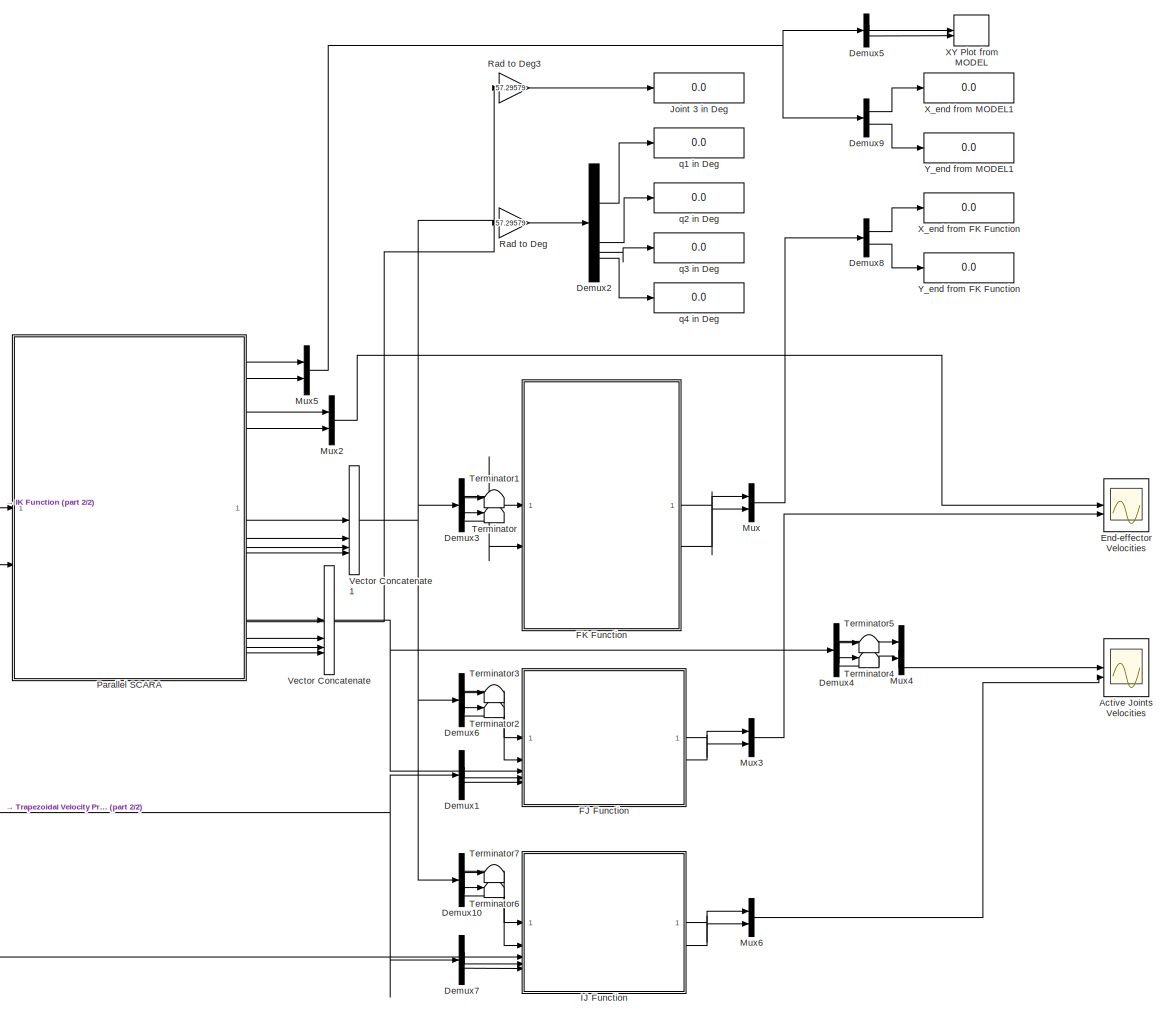
[diagram: root canvas - part 1/2, right side, full height]
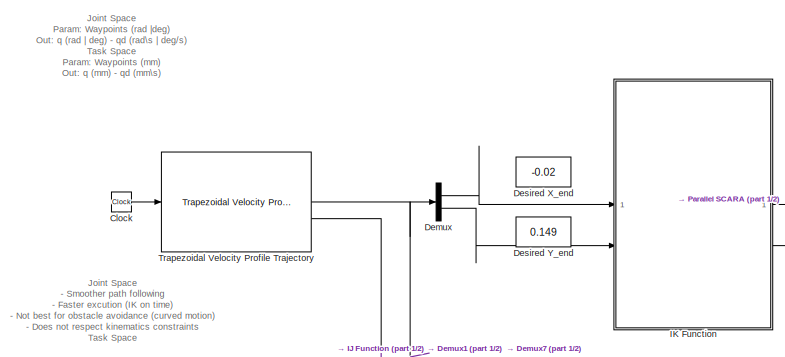
[diagram: root canvas - part 2/2, middle left region]
MODEL slx_7d4622755899
KIND model
CONFIG AbsTol = auto
CONFIG EnableMultiTasking = off
CONFIG FixedStep = auto
CONFIG MaxStep = auto
CONFIG MinStep = auto
CONFIG RelTol = 1e-3
CONFIG SampleTimeConstraint = Unconstrained
CONFIG SolverName = VariableStepAuto
CONFIG StartTime = 0.0
CONFIG StopTime = 10.0
BLOCK [Scope] Active Joints Velocities
  Floating = off
  NumInputPorts = 2
  ScopeSpecificationString = Simulink.scopes.TimeScopeBlockCfg('CurrentConfiguration', extmgr.ConfigurationSet(extmgr.Configuration('Core','General UI',true),extmgr.Configuration('Core','Source UI',true),extmgr.Configuration('Sources','WiredSimulink',true,'DataLoggingVariableName','ScopeData1'),extmgr.Configuration('Visuals','Time Domain',true,'SerializedDisplays',{struct('MinYLimReal','-0.96266','MaxYLimReal','0.37166','YLab...<+1627ch>
BLOCK [Clock] Clock
BLOCK [Demux] Demux
  Outputs = 2
BLOCK [Demux] Demux1
  Outputs = 2
BLOCK [Demux] Demux10
BLOCK [Demux] Demux2
BLOCK [Demux] Demux3
BLOCK [Demux] Demux4
BLOCK [Demux] Demux5
  Outputs = 2
BLOCK [Demux] Demux6
BLOCK [Demux] Demux7
  Outputs = 2
BLOCK [Demux] Demux8
  Outputs = 2
BLOCK [Demux] Demux9
  Outputs = 2
BLOCK [Constant] Desired X_end
  Value = -0.02
BLOCK [Constant] Desired Y_end
  Value = 0.149
BLOCK [Scope] End-effector Velocities
  Floating = off
  NumInputPorts = 2
  ScopeSpecificationString = Simulink.scopes.TimeScopeBlockCfg('CurrentConfiguration', extmgr.ConfigurationSet(extmgr.Configuration('Core','General UI',true),extmgr.Configuration('Core','Source UI',true),extmgr.Configuration('Sources','WiredSimulink',true),extmgr.Configuration('Visuals','Time Domain',true,'SerializedDisplays',{struct('MinYLimReal','-0.00967','MaxYLimReal','0.08445','YLabelReal','','MinYLimMag','0.00000','MaxY...<+1602ch>
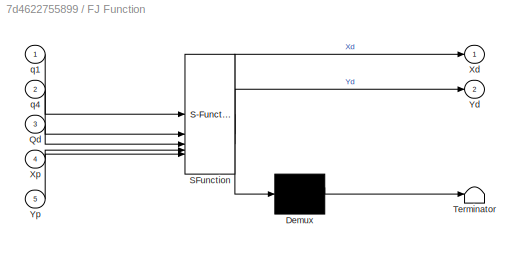
BLOCK [SubSystem] FJ Function
  ErrorFcn = Stateflow.Translate.translate
  LibrarySourceBlock = simulink/User-Defined\nFunctions/MATLAB Function
  PermitHierarchicalResolution = ExplicitOnly
  SFBlockType = MATLAB Function
  TreatAsAtomicUnit = on
BLOCK [Demux] FJ Function/ Demux 
  Outputs = 1
BLOCK [S-Function] FJ Function/ SFunction 
  EnableBusSupport = on
  FunctionName = sf_sfun
  PortCounts = [5 3]
  SFcnIsStateOwnerBlock = off
  SFunctionDeploymentMode = off
  Tag = Stateflow S-Function 3
BLOCK [Terminator] FJ Function/ Terminator 
BLOCK [Inport] FJ Function/Qd
  Port = 3
BLOCK [Outport] FJ Function/Xd
BLOCK [Inport] FJ Function/Xp
  Port = 4
BLOCK [Outport] FJ Function/Yd
  Port = 2
BLOCK [Inport] FJ Function/Yp
  Port = 5
BLOCK [Inport] FJ Function/q1
BLOCK [Inport] FJ Function/q4
  Port = 2
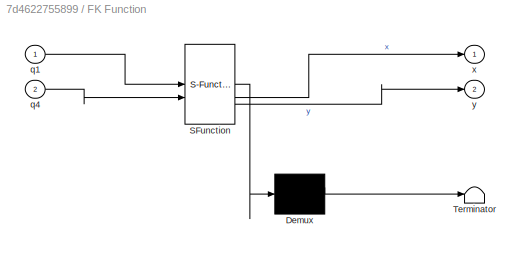
BLOCK [SubSystem] FK Function
  ErrorFcn = Stateflow.Translate.translate
  LibrarySourceBlock = simulink/User-Defined\nFunctions/MATLAB Function
  PermitHierarchicalResolution = ExplicitOnly
  SFBlockType = MATLAB Function
  TreatAsAtomicUnit = on
BLOCK [Demux] FK Function/ Demux 
  Outputs = 1
BLOCK [S-Function] FK Function/ SFunction 
  EnableBusSupport = on
  FunctionName = sf_sfun
  PortCounts = [2 3]
  SFcnIsStateOwnerBlock = off
  SFunctionDeploymentMode = off
  Tag = Stateflow S-Function 1
BLOCK [Terminator] FK Function/ Terminator 
BLOCK [Inport] FK Function/q1
BLOCK [Inport] FK Function/q4
  Port = 2
BLOCK [Outport] FK Function/x
BLOCK [Outport] FK Function/y
  Port = 2
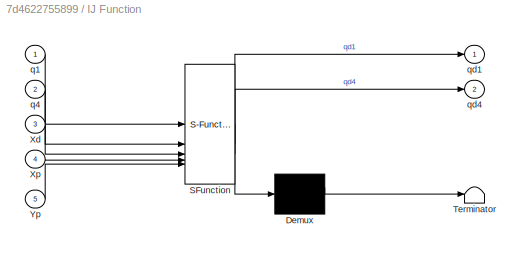
BLOCK [SubSystem] IJ Function
  ErrorFcn = Stateflow.Translate.translate
  LibrarySourceBlock = simulink/User-Defined\nFunctions/MATLAB Function
  PermitHierarchicalResolution = ExplicitOnly
  SFBlockType = MATLAB Function
  TreatAsAtomicUnit = on
BLOCK [Demux] IJ Function/ Demux 
  Outputs = 1
BLOCK [S-Function] IJ Function/ SFunction 
  EnableBusSupport = on
  FunctionName = sf_sfun
  PortCounts = [5 3]
  SFcnIsStateOwnerBlock = off
  SFunctionDeploymentMode = off
  Tag = Stateflow S-Function 4
BLOCK [Terminator] IJ Function/ Terminator 
BLOCK [Inport] IJ Function/Xd
  Port = 3
BLOCK [Inport] IJ Function/Xp
  Port = 4
BLOCK [Inport] IJ Function/Yp
  Port = 5
BLOCK [Inport] IJ Function/q1
BLOCK [Inport] IJ Function/q4
  Port = 2
BLOCK [Outport] IJ Function/qd1
BLOCK [Outport] IJ Function/qd4
  Port = 2
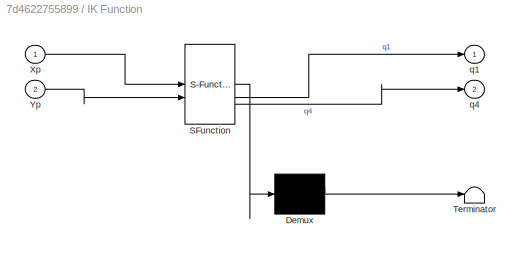
BLOCK [SubSystem] IK Function
  ErrorFcn = Stateflow.Translate.translate
  LibrarySourceBlock = simulink/User-Defined\nFunctions/MATLAB Function
  PermitHierarchicalResolution = ExplicitOnly
  SFBlockType = MATLAB Function
  TreatAsAtomicUnit = on
BLOCK [Demux] IK Function/ Demux 
  Outputs = 1
BLOCK [S-Function] IK Function/ SFunction 
  EnableBusSupport = on
  FunctionName = sf_sfun
  PortCounts = [2 3]
  SFcnIsStateOwnerBlock = off
  SFunctionDeploymentMode = off
  Tag = Stateflow S-Function 2
BLOCK [Terminator] IK Function/ Terminator 
BLOCK [Inport] IK Function/Xp
BLOCK [Inport] IK Function/Yp
  Port = 2
BLOCK [Outport] IK Function/q1
BLOCK [Outport] IK Function/q4
  Port = 2
BLOCK [Display] Joint 3 in Deg
  Decimation = 1
BLOCK [Mux] Mux
  DisplayOption = bar
  Inputs = 2
BLOCK [Mux] Mux2
  DisplayOption = bar
  Inputs = 2
BLOCK [Mux] Mux3
  DisplayOption = bar
  Inputs = 2
BLOCK [Mux] Mux4
  DisplayOption = bar
  Inputs = 2
BLOCK [Mux] Mux5
  DisplayOption = bar
  Inputs = 2
BLOCK [Mux] Mux6
  DisplayOption = bar
  Inputs = 2
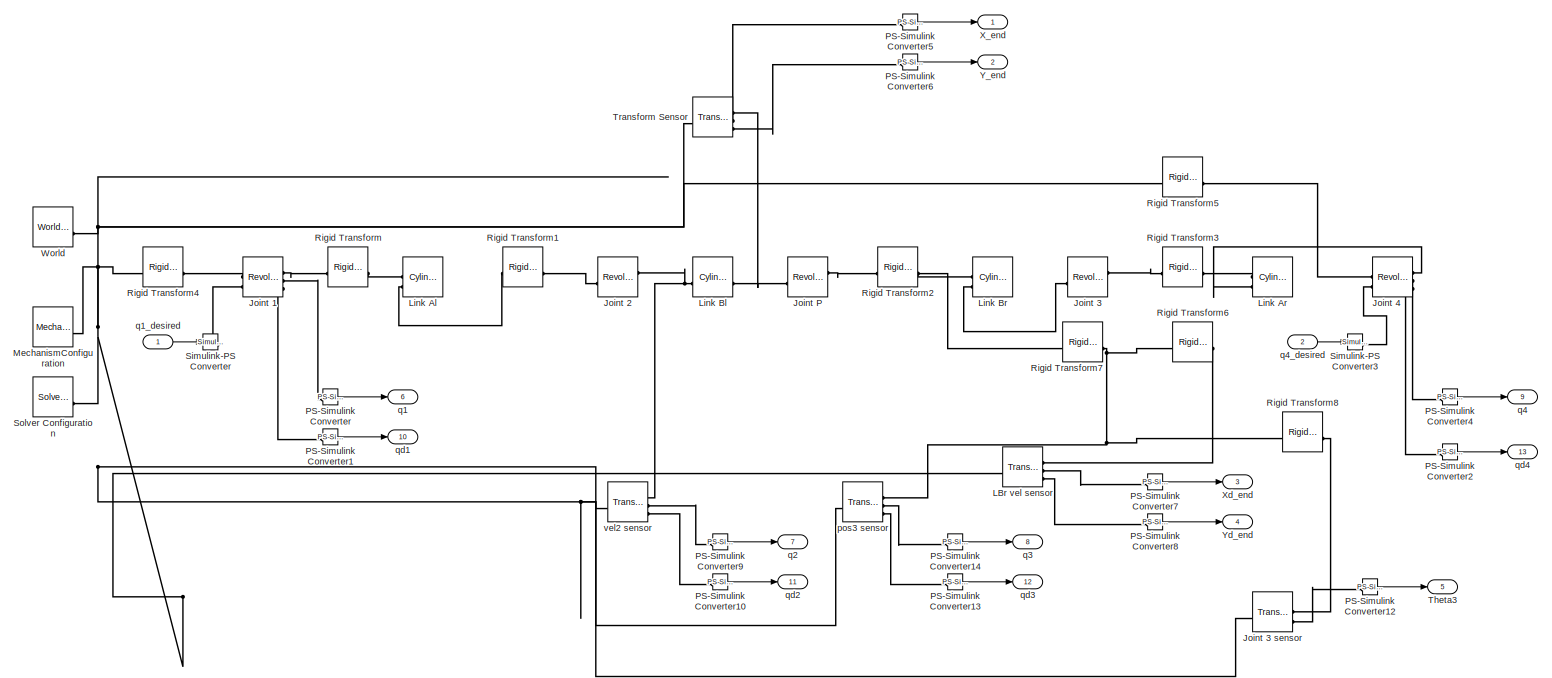
[diagram: Parallel SCARA - part 1/1, most of the canvas]
BLOCK [SubSystem] Parallel SCARA
BLOCK [Reference] Parallel SCARA/Joint 1  REF=sm_lib/Joints/Revolute Joint
  SourceBlock = sm_lib/Joints/Revolute Joint
  SourceType = Revolute Joint
BLOCK [Reference] Parallel SCARA/Joint 2  REF=sm_lib/Joints/Revolute Joint
  SourceBlock = sm_lib/Joints/Revolute Joint
  SourceType = Revolute Joint
BLOCK [Reference] Parallel SCARA/Joint 3  REF=sm_lib/Joints/Revolute Joint
  SourceBlock = sm_lib/Joints/Revolute Joint
  SourceType = Revolute Joint
BLOCK [Reference] Parallel SCARA/Joint 3 sensor   REF=sm_lib/Frames and
Transforms/Transform
Sensor
  SourceBlock = sm_lib/Frames and\nTransforms/Transform\nSensor
  SourceType = Transform\nSensor
BLOCK [Reference] Parallel SCARA/Joint 4  REF=sm_lib/Joints/Revolute Joint
  SourceBlock = sm_lib/Joints/Revolute Joint
  SourceType = Revolute Joint
BLOCK [Reference] Parallel SCARA/Joint P  REF=sm_lib/Joints/Revolute Joint
  SourceBlock = sm_lib/Joints/Revolute Joint
  SourceType = Revolute Joint
BLOCK [Reference] Parallel SCARA/LBr vel sensor  REF=sm_lib/Frames and
Transforms/Transform
Sensor
  SourceBlock = sm_lib/Frames and\nTransforms/Transform\nSensor
  SourceType = Transform\nSensor
BLOCK [Reference] Parallel SCARA/Link Al  REF=sm_lib/Body Elements/Cylindrical Solid
  SourceBlock = sm_lib/Body Elements/Cylindrical Solid
  SourceType = Cylindrical Solid
BLOCK [Reference] Parallel SCARA/Link Ar  REF=sm_lib/Body Elements/Cylindrical Solid
  SourceBlock = sm_lib/Body Elements/Cylindrical Solid
  SourceType = Cylindrical Solid
BLOCK [Reference] Parallel SCARA/Link Bl  REF=sm_lib/Body Elements/Cylindrical Solid
  SourceBlock = sm_lib/Body Elements/Cylindrical Solid
  SourceType = Cylindrical Solid
BLOCK [Reference] Parallel SCARA/Link Br  REF=sm_lib/Body Elements/Cylindrical Solid
  SourceBlock = sm_lib/Body Elements/Cylindrical Solid
  SourceType = Cylindrical Solid
BLOCK [Reference] Parallel SCARA/MechanismConfiguration  REF=sm_lib/Utilities/Mechanism
Configuration
  SourceBlock = sm_lib/Utilities/Mechanism\nConfiguration
  SourceType = Mechanism\nConfiguration
BLOCK [Reference] Parallel SCARA/PS-Simulink Converter  REF=nesl_utility/PS-Simulink
Converter
  SourceBlock = nesl_utility/PS-Simulink\nConverter
  SourceType = PS-Simulink\nConverter
BLOCK [Reference] Parallel SCARA/PS-Simulink Converter1  REF=nesl_utility/PS-Simulink
Converter
  SourceBlock = nesl_utility/PS-Simulink\nConverter
  SourceType = PS-Simulink\nConverter
BLOCK [Reference] Parallel SCARA/PS-Simulink Converter10  REF=nesl_utility/PS-Simulink
Converter
  SourceBlock = nesl_utility/PS-Simulink\nConverter
  SourceType = PS-Simulink\nConverter
BLOCK [Reference] Parallel SCARA/PS-Simulink Converter12  REF=nesl_utility/PS-Simulink
Converter
  SourceBlock = nesl_utility/PS-Simulink\nConverter
  SourceType = PS-Simulink\nConverter
BLOCK [Reference] Parallel SCARA/PS-Simulink Converter13  REF=nesl_utility/PS-Simulink
Converter
  SourceBlock = nesl_utility/PS-Simulink\nConverter
  SourceType = PS-Simulink\nConverter
BLOCK [Reference] Parallel SCARA/PS-Simulink Converter14  REF=nesl_utility/PS-Simulink
Converter
  SourceBlock = nesl_utility/PS-Simulink\nConverter
  SourceType = PS-Simulink\nConverter
BLOCK [Reference] Parallel SCARA/PS-Simulink Converter2  REF=nesl_utility/PS-Simulink
Converter
  SourceBlock = nesl_utility/PS-Simulink\nConverter
  SourceType = PS-Simulink\nConverter
BLOCK [Reference] Parallel SCARA/PS-Simulink Converter4  REF=nesl_utility/PS-Simulink
Converter
  SourceBlock = nesl_utility/PS-Simulink\nConverter
  SourceType = PS-Simulink\nConverter
BLOCK [Reference] Parallel SCARA/PS-Simulink Converter5  REF=nesl_utility/PS-Simulink
Converter
  SourceBlock = nesl_utility/PS-Simulink\nConverter
  SourceType = PS-Simulink\nConverter
BLOCK [Reference] Parallel SCARA/PS-Simulink Converter6  REF=nesl_utility/PS-Simulink
Converter
  SourceBlock = nesl_utility/PS-Simulink\nConverter
  SourceType = PS-Simulink\nConverter
BLOCK [Reference] Parallel SCARA/PS-Simulink Converter7  REF=nesl_utility/PS-Simulink
Converter
  SourceBlock = nesl_utility/PS-Simulink\nConverter
  SourceType = PS-Simulink\nConverter
BLOCK [Reference] Parallel SCARA/PS-Simulink Converter8  REF=nesl_utility/PS-Simulink
Converter
  SourceBlock = nesl_utility/PS-Simulink\nConverter
  SourceType = PS-Simulink\nConverter
BLOCK [Reference] Parallel SCARA/PS-Simulink Converter9  REF=nesl_utility/PS-Simulink
Converter
  SourceBlock = nesl_utility/PS-Simulink\nConverter
  SourceType = PS-Simulink\nConverter
BLOCK [Reference] Parallel SCARA/Rigid Transform  REF=sm_lib/Frames and
Transforms/Rigid
Transform
  SourceBlock = sm_lib/Frames and\nTransforms/Rigid\nTransform
  SourceType = Rigid\nTransform
BLOCK [Reference] Parallel SCARA/Rigid Transform1  REF=sm_lib/Frames and
Transforms/Rigid
Transform
  SourceBlock = sm_lib/Frames and\nTransforms/Rigid\nTransform
  SourceType = Rigid\nTransform
BLOCK [Reference] Parallel SCARA/Rigid Transform2  REF=sm_lib/Frames and
Transforms/Rigid
Transform
  SourceBlock = sm_lib/Frames and\nTransforms/Rigid\nTransform
  SourceType = Rigid\nTransform
BLOCK [Reference] Parallel SCARA/Rigid Transform3  REF=sm_lib/Frames and
Transforms/Rigid
Transform
  SourceBlock = sm_lib/Frames and\nTransforms/Rigid\nTransform
  SourceType = Rigid\nTransform
BLOCK [Reference] Parallel SCARA/Rigid Transform4  REF=sm_lib/Frames and
Transforms/Rigid
Transform
  SourceBlock = sm_lib/Frames and\nTransforms/Rigid\nTransform
  SourceType = Rigid\nTransform
BLOCK [Reference] Parallel SCARA/Rigid Transform5  REF=sm_lib/Frames and
Transforms/Rigid
Transform
  SourceBlock = sm_lib/Frames and\nTransforms/Rigid\nTransform
  SourceType = Rigid\nTransform
BLOCK [Reference] Parallel SCARA/Rigid Transform6  REF=sm_lib/Frames and
Transforms/Rigid
Transform
  SourceBlock = sm_lib/Frames and\nTransforms/Rigid\nTransform
  SourceType = Rigid\nTransform
BLOCK [Reference] Parallel SCARA/Rigid Transform7  REF=sm_lib/Frames and
Transforms/Rigid
Transform
  SourceBlock = sm_lib/Frames and\nTransforms/Rigid\nTransform
  SourceType = Rigid\nTransform
BLOCK [Reference] Parallel SCARA/Rigid Transform8  REF=sm_lib/Frames and
Transforms/Rigid
Transform
  SourceBlock = sm_lib/Frames and\nTransforms/Rigid\nTransform
  SourceType = Rigid\nTransform
BLOCK [Reference] Parallel SCARA/Simulink-PS Converter  REF=nesl_utility/Simulink-PS
Converter
  SourceBlock = nesl_utility/Simulink-PS\nConverter
  SourceType = Simulink-PS\nConverter
BLOCK [Reference] Parallel SCARA/Simulink-PS Converter3  REF=nesl_utility/Simulink-PS
Converter
  SourceBlock = nesl_utility/Simulink-PS\nConverter
  SourceType = Simulink-PS\nConverter
BLOCK [Reference] Parallel SCARA/Solver Configuration  REF=nesl_utility/Solver
Configuration
  SourceBlock = nesl_utility/Solver\nConfiguration
  SourceType = Solver\nConfiguration
BLOCK [Outport] Parallel SCARA/Theta3
  Port = 5
BLOCK [Reference] Parallel SCARA/Transform Sensor  REF=sm_lib/Frames and
Transforms/Transform
Sensor
  SourceBlock = sm_lib/Frames and\nTransforms/Transform\nSensor
  SourceType = Transform\nSensor
BLOCK [Reference] Parallel SCARA/World  REF=sm_lib/Frames and
Transforms/World Frame
  SourceBlock = sm_lib/Frames and\nTransforms/World Frame
  SourceType = World Frame
BLOCK [Outport] Parallel SCARA/X_end
BLOCK [Outport] Parallel SCARA/Xd_end
  Port = 3
BLOCK [Outport] Parallel SCARA/Y_end
  Port = 2
BLOCK [Outport] Parallel SCARA/Yd_end
  Port = 4
BLOCK [Reference] Parallel SCARA/pos3 sensor  REF=sm_lib/Frames and
Transforms/Transform
Sensor
  SourceBlock = sm_lib/Frames and\nTransforms/Transform\nSensor
  SourceType = Transform\nSensor
BLOCK [Outport] Parallel SCARA/q1
  Port = 6
BLOCK [Inport] Parallel SCARA/q1_desired
BLOCK [Outport] Parallel SCARA/q2
  Port = 7
BLOCK [Outport] Parallel SCARA/q3
  Port = 8
BLOCK [Outport] Parallel SCARA/q4
  Port = 9
BLOCK [Inport] Parallel SCARA/q4_desired
  Port = 2
BLOCK [Outport] Parallel SCARA/qd1
  Port = 10
BLOCK [Outport] Parallel SCARA/qd2
  Port = 11
BLOCK [Outport] Parallel SCARA/qd3
  Port = 12
BLOCK [Outport] Parallel SCARA/qd4
  Port = 13
BLOCK [Reference] Parallel SCARA/vel2 sensor  REF=sm_lib/Frames and
Transforms/Transform
Sensor
  SourceBlock = sm_lib/Frames and\nTransforms/Transform\nSensor
  SourceType = Transform\nSensor
BLOCK [Gain] Rad to Deg
  Gain = 57.29579
BLOCK [Gain] Rad to Deg3
  Gain = 57.29579
BLOCK [Terminator] Terminator
BLOCK [Terminator] Terminator1
BLOCK [Terminator] Terminator2
BLOCK [Terminator] Terminator3
BLOCK [Terminator] Terminator4
BLOCK [Terminator] Terminator5
BLOCK [Terminator] Terminator6
BLOCK [Terminator] Terminator7
BLOCK [Reference] Trapezoidal Velocity Profile Trajectory  REF=robotcorelib/Trapezoidal Velocity Profile Trajectory
  LibrarySourceBlock = robotutilslib/Trapezoidal Velocity Profile Trajectory
  SourceBlock = robotcorelib/Trapezoidal Velocity Profile Trajectory
  SourceType = robotics.slcore.internal.block.TrapVelTrajSys
BLOCK [Concatenate] Vector Concatenate
  NumInputs = 4
BLOCK [Concatenate] Vector Concatenate1
  NumInputs = 4
BLOCK [Record] XY Plot from MODEL
  CompatibilityTag = XY
  FileSettingsInternal = {"entries":[{"content":{"excelSettings":{"content":{},"type":"Streamout.ExcelSettings"}},"type":"Streamout.FileSettingStorage","uuid":"f4e9d8e9-783c-4af9-9f9e-7bd75a06b44d"}],"packageUris":["http://schema.mathworks.com/mf0/streamout_blocks/R2020a"],"version":"1.0"}
  Layout = [1 1]
  SignalsInternal = {"entries":[{"content":{"signals":[{"content":{"blockPath":["SCARA_Control_System/XY Plot from MODEL"],"dimensions":[1],"domain":"SCARA_Control_System/XY Plot from MODEL","lineColor":"#22b573","port":1,"sid":[""],"signalID":1875,"signalName":"Demux5:1"},"type":"RecordBlkView.Signal","uuid":"6f077d22-c755-4374-a6e7-1c1d86a9b0c2"},{"content":{"blockPath":["SCARA_Control_System/XY Plot from MODEL"],"...<+403ch>
  VisualizationBindings = {"xyplotplugin":{"info":[{"series":[],"subplotID":1}]}}
BLOCK [Display] X_end from FK Function
  Decimation = 1
BLOCK [Display] X_end from MODEL1
  Decimation = 1
BLOCK [Display] Y_end from FK Function
  Decimation = 1
BLOCK [Display] Y_end from MODEL1
  Decimation = 1
BLOCK [Display] q1 in Deg
  Decimation = 1
BLOCK [Display] q2 in Deg
  Decimation = 1
BLOCK [Display] q3 in Deg
  Decimation = 1
BLOCK [Display] q4 in Deg
  Decimation = 1
ANNOTATION (root): Joint Space - Smoother path following - Faster excution (IK on time) - Not best for obstacle avoidance (curved motion) - Does not respect kinematics constraints Task Space - Best for obstacle avoidance (straight motion) - Lower chance of singularity - Slow excution time (IK at every step) - Rough/jerky motion
ANNOTATION (root): Joint Space Param: Waypoints (rad |deg) Out: q (rad | deg) - qd (rad\s | deg/s) Task Space Param: Waypoints (mm) Out: q (mm) - qd (mm\s)
LINE Clock:1 -> Trapezoidal Velocity Profile Trajectory:1
LINE Demux10:1 -> IJ Function:1
LINE Demux10:2 -> Terminator7:1
LINE Demux10:3 -> Terminator6:1
LINE Demux10:4 -> IJ Function:2
LINE Demux1:1 -> FJ Function:4
LINE Demux1:2 -> FJ Function:5
LINE Demux2:1 -> q1 in Deg:1
LINE Demux2:2 -> q2 in Deg:1
LINE Demux2:3 -> q3 in Deg:1
LINE Demux2:4 -> q4 in Deg:1
LINE Demux3:1 -> FK Function:1
LINE Demux3:2 -> Terminator1:1
LINE Demux3:3 -> Terminator:1
LINE Demux3:4 -> FK Function:2
LINE Demux4:1 -> Mux4:1
LINE Demux4:2 -> Terminator5:1
LINE Demux4:3 -> Terminator4:1
LINE Demux4:4 -> Mux4:2
LINE Demux5:1 -> XY Plot from MODEL:1
LINE Demux5:2 -> XY Plot from MODEL:2
LINE Demux6:1 -> FJ Function:1
LINE Demux6:2 -> Terminator3:1
LINE Demux6:3 -> Terminator2:1
LINE Demux6:4 -> FJ Function:2
LINE Demux7:1 -> IJ Function:4
LINE Demux7:2 -> IJ Function:5
LINE Demux8:1 -> X_end from FK Function:1
LINE Demux8:2 -> Y_end from FK Function:1
LINE Demux9:1 -> X_end from MODEL1:1
LINE Demux9:2 -> Y_end from MODEL1:1
LINE Demux:1 -> IK Function:1
LINE Demux:2 -> IK Function:2
LINE FJ Function:1 -> Mux3:1
LINE FJ Function:2 -> Mux3:2
LINE FK Function:1 -> Mux:1
LINE FK Function:2 -> Mux:2
LINE IJ Function:1 -> Mux6:1
LINE IJ Function:2 -> Mux6:2
LINE IK Function:1 -> Parallel SCARA:1
LINE IK Function:2 -> Parallel SCARA:2
LINE Mux2:1 -> End-effector Velocities:1
LINE Mux3:1 -> End-effector Velocities:2
LINE Mux4:1 -> Active Joints Velocities:1
NET Mux5:1 -> Demux5:1, Demux9:1
LINE Mux6:1 -> Active Joints Velocities:2
LINE Mux:1 -> Demux8:1
LINE Parallel SCARA/PS-Simulink Converter10:1 -> Parallel SCARA/qd2:1
LINE Parallel SCARA/PS-Simulink Converter12:1 -> Parallel SCARA/Theta3:1
LINE Parallel SCARA/PS-Simulink Converter13:1 -> Parallel SCARA/qd3:1
LINE Parallel SCARA/PS-Simulink Converter14:1 -> Parallel SCARA/q3:1
LINE Parallel SCARA/PS-Simulink Converter1:1 -> Parallel SCARA/qd1:1
LINE Parallel SCARA/PS-Simulink Converter2:1 -> Parallel SCARA/qd4:1
LINE Parallel SCARA/PS-Simulink Converter4:1 -> Parallel SCARA/q4:1
LINE Parallel SCARA/PS-Simulink Converter5:1 -> Parallel SCARA/X_end:1
LINE Parallel SCARA/PS-Simulink Converter6:1 -> Parallel SCARA/Y_end:1
LINE Parallel SCARA/PS-Simulink Converter7:1 -> Parallel SCARA/Xd_end:1
LINE Parallel SCARA/PS-Simulink Converter8:1 -> Parallel SCARA/Yd_end:1
LINE Parallel SCARA/PS-Simulink Converter9:1 -> Parallel SCARA/q2:1
LINE Parallel SCARA/PS-Simulink Converter:1 -> Parallel SCARA/q1:1
LINE Parallel SCARA/q1_desired:1 -> Parallel SCARA/Simulink-PS Converter:1
LINE Parallel SCARA/q4_desired:1 -> Parallel SCARA/Simulink-PS Converter3:1
LINE Parallel SCARA:1 -> Mux5:1
LINE Parallel SCARA:10 -> Vector Concatenate:1
LINE Parallel SCARA:11 -> Vector Concatenate:2
LINE Parallel SCARA:12 -> Vector Concatenate:3
LINE Parallel SCARA:13 -> Vector Concatenate:4
LINE Parallel SCARA:2 -> Mux5:2
LINE Parallel SCARA:3 -> Mux2:1
LINE Parallel SCARA:4 -> Mux2:2
LINE Parallel SCARA:5 -> Rad to Deg3:1
LINE Parallel SCARA:6 -> Vector Concatenate1:1
LINE Parallel SCARA:7 -> Vector Concatenate1:2
LINE Parallel SCARA:8 -> Vector Concatenate1:3
LINE Parallel SCARA:9 -> Vector Concatenate1:4
LINE Rad to Deg3:1 -> Joint 3 in Deg:1
LINE Rad to Deg:1 -> Demux2:1
NET Trapezoidal Velocity Profile Trajectory:1 -> Demux1:1, Demux7:1, Demux:1
LINE Trapezoidal Velocity Profile Trajectory:2 -> IJ Function:3
NET Vector Concatenate1:1 -> Demux10:1, Demux3:1, Demux6:1, Rad to Deg:1
NET Vector Concatenate:1 -> Demux4:1, FJ Function:3
PLINE Parallel SCARA/Joint 1:LConn1 -- Parallel SCARA/Rigid Transform4:RConn1
PLINE Parallel SCARA/Joint 1:LConn2 -- Parallel SCARA/Simulink-PS Converter:RConn1
PLINE Parallel SCARA/Joint 1:RConn1 -- Parallel SCARA/Rigid Transform:LConn1
PLINE Parallel SCARA/Joint 1:RConn2 -- Parallel SCARA/PS-Simulink Converter:LConn1
PLINE Parallel SCARA/Joint 1:RConn3 -- Parallel SCARA/PS-Simulink Converter1:LConn1
PLINE Parallel SCARA/Joint 2:LConn1 -- Parallel SCARA/Rigid Transform1:RConn1
PNET net1: Parallel SCARA/Joint 2:RConn1 -- Parallel SCARA/Link Bl:LConn1 -- Parallel SCARA/vel2 sensor:RConn1
PNET net2: Parallel SCARA/Joint 3 sensor :LConn1 -- Parallel SCARA/LBr vel sensor:LConn1 -- Parallel SCARA/MechanismConfiguration:RConn1 -- Parallel SCARA/Rigid Transform4:LConn1 -- Parallel SCARA/Rigid Transform5:LConn1 -- Parallel SCARA/Solver Configuration:RConn1 -- Parallel SCARA/Transform Sensor:LConn1 -- Parallel SCARA/World:RConn1 -- Parallel SCARA/pos3 sensor:LConn1 -- Parallel SCARA/vel2 sensor:LConn1
PLINE Parallel SCARA/Joint 3 sensor :RConn1 -- Parallel SCARA/Rigid Transform8:RConn1
PLINE Parallel SCARA/Joint 3 sensor :RConn2 -- Parallel SCARA/PS-Simulink Converter12:LConn1
PLINE Parallel SCARA/Joint 3:LConn1 -- Parallel SCARA/Link Br:LConn2
PLINE Parallel SCARA/Joint 3:RConn1 -- Parallel SCARA/Rigid Transform3:LConn1
PLINE Parallel SCARA/Joint 4:LConn1 -- Parallel SCARA/Rigid Transform5:RConn1
PLINE Parallel SCARA/Joint 4:LConn2 -- Parallel SCARA/Simulink-PS Converter3:RConn1
PLINE Parallel SCARA/Joint 4:RConn1 -- Parallel SCARA/Link Ar:LConn2
PLINE Parallel SCARA/Joint 4:RConn2 -- Parallel SCARA/PS-Simulink Converter4:LConn1
PLINE Parallel SCARA/Joint 4:RConn3 -- Parallel SCARA/PS-Simulink Converter2:LConn1
PNET net3: Parallel SCARA/Joint P:LConn1 -- Parallel SCARA/Link Bl:RConn1 -- Parallel SCARA/Transform Sensor:RConn1
PLINE Parallel SCARA/Joint P:RConn1 -- Parallel SCARA/Rigid Transform2:LConn1
PLINE Parallel SCARA/LBr vel sensor:RConn1 -- Parallel SCARA/Rigid Transform6:RConn1
PLINE Parallel SCARA/LBr vel sensor:RConn2 -- Parallel SCARA/PS-Simulink Converter7:LConn1
PLINE Parallel SCARA/LBr vel sensor:RConn3 -- Parallel SCARA/PS-Simulink Converter8:LConn1
PLINE Parallel SCARA/Link Al:LConn1 -- Parallel SCARA/Rigid Transform:RConn1
PLINE Parallel SCARA/Link Al:LConn2 -- Parallel SCARA/Rigid Transform1:LConn1
PLINE Parallel SCARA/Link Ar:LConn1 -- Parallel SCARA/Rigid Transform3:RConn1
PNET net4: Parallel SCARA/Link Br:LConn1 -- Parallel SCARA/Rigid Transform2:RConn1 -- Parallel SCARA/Rigid Transform7:LConn1
PLINE Parallel SCARA/PS-Simulink Converter10:LConn1 -- Parallel SCARA/vel2 sensor:RConn3
PLINE Parallel SCARA/PS-Simulink Converter13:LConn1 -- Parallel SCARA/pos3 sensor:RConn3
PLINE Parallel SCARA/PS-Simulink Converter14:LConn1 -- Parallel SCARA/pos3 sensor:RConn2
PLINE Parallel SCARA/PS-Simulink Converter5:LConn1 -- Parallel SCARA/Transform Sensor:RConn2
PLINE Parallel SCARA/PS-Simulink Converter6:LConn1 -- Parallel SCARA/Transform Sensor:RConn3
PLINE Parallel SCARA/PS-Simulink Converter9:LConn1 -- Parallel SCARA/vel2 sensor:RConn2
PNET net5: Parallel SCARA/Rigid Transform6:LConn1 -- Parallel SCARA/Rigid Transform7:RConn1 -- Parallel SCARA/Rigid Transform8:LConn1 -- Parallel SCARA/pos3 sensor:RConn1
note: NET lines group one-source signal fan-out (src -> all destinations, sorted); 1:1 wires keep LINE; PNET lines group multi-terminal physical nets as a canonical sorted terminal list (undirected conserving connections); 2-terminal nets keep the pairwise PLINE form
CHART FK Function states=1 transitions=1
  STATE_LABEL 'eML_blk_kernel()'
  STATE_LABEL 'SCRIPT:\nfunction [x, y] = forwardKinematics(q1, q4)\nla = 0.100;\nlb = 0.220;\nlc = 0.230;\n\nE = 2*lb*(lc + (la*(cos(q4) - cos(q1))));\nF = (2*la*lb*sin(q4)) - (2*la*lb*sin(q1));\nG = (lc^2) + (2*(la^2)) + (2*lc*la*cos(q4)) - (2*lc*la*cos(q1)) - (2*(la^2)*cos(q4 - q1));\n\ntheta2 = 2*atan((-F - sqrt( (E^2) + (F^2) - (G^2) )) / (G - E));\n\n% display(theta2 * 180 / 3.1415);\n\nx = lc + (la*cos(q4)) + (lb*cos(t...<+61ch>'
CHART IK Function states=1 transitions=1
  STATE_LABEL 'eML_blk_kernel()'
  STATE_LABEL 'SCRIPT:\nfunction [q1, q4] = inverseKinematics(Xp, Yp)\n%{ \nThis function converts desired pose into angles of the actuated joints\n@param Xp [1x1] -> Hor. distance in METERS from midpoint of motors line\n@param Yp [1x1] -> Ver. distance in METERS from midpoint of motors line\nreturn q1 [1x1] -> Angle in RAD of motor 1 (Left) from +ve x-axis CCW\nreturn q2 [1x1] -> Angle in RAD of motor 2 (Right) from +...<+568ch>'
CHART FJ Function states=1 transitions=1
  STATE_LABEL 'eML_blk_kernel()'
  STATE_LABEL 'SCRIPT:\nfunction [Xd, Yd] = forwardJacobian(q1, q4, Qd, Xp, Yp)\n%{ \nThis function converts joints velocities into endeffector velocity\n@param Xp [1x1] -> Hor. distance in METERS from midpoint of motors line\n@param Yp [1x1] -> Ver. distance in METERS from midpoint of motors line\n@param q1 [1x1] -> Angle in RAD of motor 1 (Left) from +ve x-axis CCW\n@param q4 [1x1] -> Angle in RAD of motor 2 (Right) ...<+1431ch>'
CHART IJ Function states=1 transitions=1
  STATE_LABEL 'eML_blk_kernel()'
  STATE_LABEL 'SCRIPT:\nfunction [qd1, qd4] = inverseJacobian(q1, q4, Xd, Xp, Yp)\n%{ \nThis function converts desired endeffector velocity into joints velocities \n@param q1 [1x1] -> Angle in RAD of motor 1 (Left) from +ve x-axis CCW\n@param q4 [1x1] -> Angle in RAD of motor 2 (Right) from +ve x-axis CCW\n@param Xd [4x1] -> Velocities in METER/SEC of the end-effector\n@param Xp [1x1] -> Hor. distance in METERS from mi...<+1453ch>'
CHART  states=0 transitions=0
CHART  states=0 transitions=0
CHART  states=0 transitions=0
CHART  states=0 transitions=0
